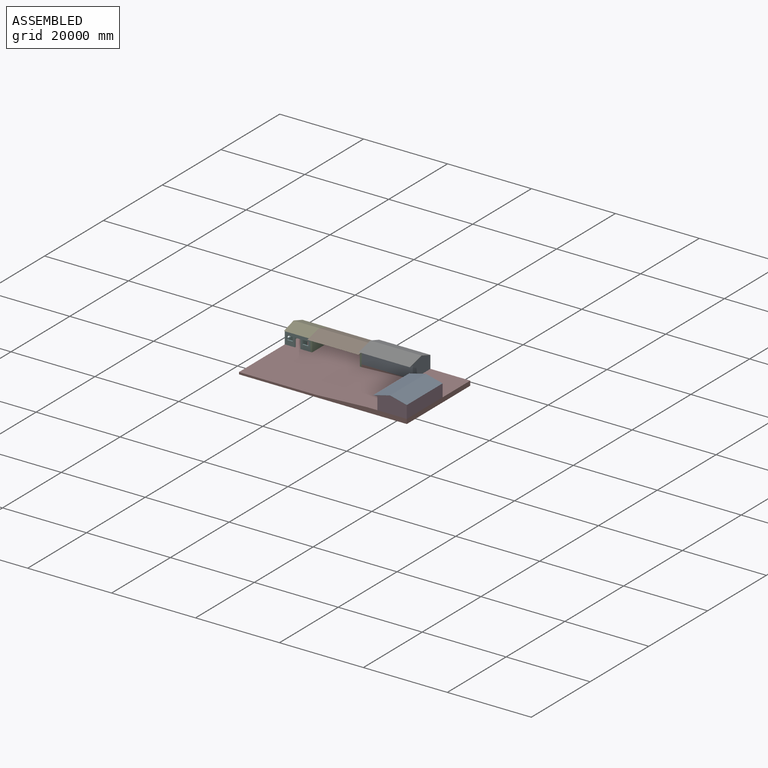
[diagram: assembled view]
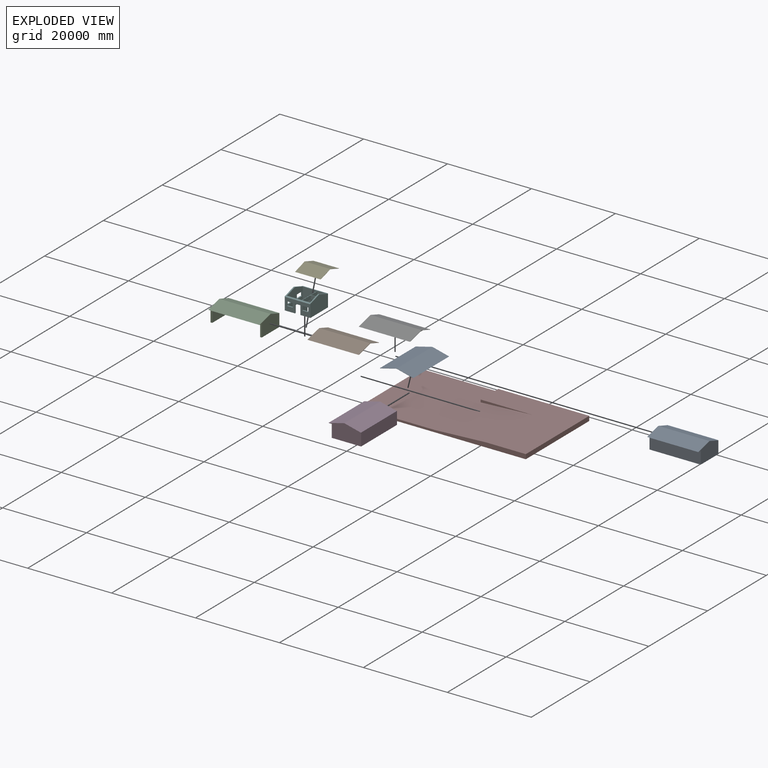
[diagram: exploded view]
GUIDED TOUR — MATED ASSEMBLY (Onshape document 048a8c4fdd6db8cd3f0c380b, AutoMate assembly 048a8c4fdd6db8cd3f0c380b_88d23949e270905b50538d9d_7436dc3538892a3179c9b70c_default)

This assembly has 9 components, labeled P0..P8 below (a component is one placed occurrence of a part; the same part can appear more than once), held together by 24 mates. A mate is a constraint between two components; its type names the relative motion it leaves free:
  PLANAR — leaves sliding in the plane through the listed point (normal = the listed direction) and rotation about that normal free.
Axis/direction vectors are unit vectors and 'through' points are millimeter coordinates, both in the assembly's world frame.

MATES
  1. PLANAR "Planar 19": P4 <-> P5, direction (0.000, -0.316, -0.949) through (6334.55, -4202.96, 3473.65) mm
  2. PLANAR "Planar 12": P3 <-> P7, direction (0.000, -1.000, 0.000) through (39711.41, -24225.28, 2365.67) mm
  3. PLANAR "Planar 9": P2 <-> P0, direction (1.000, 0.000, 0.000) through (21584.55, -5672.19, 1769.76) mm
  4. PLANAR "Planar 24": P0 <-> P6, direction (0.000, 0.000, 1.000) through (27684.55, -2702.59, 3600.00) mm
  5. PLANAR "Planar 4": P5 <-> P7, direction (0.000, 0.000, -1.000) through (6395.92, -5473.54, 0.00) mm
  6. PLANAR "Planar 14": P3 <-> P8, direction (0.000, -1.000, 0.000) through (39711.41, -24225.28, 2365.67) mm
  7. PLANAR "Planar 1": P2 <-> P7, direction (1.000, 0.000, 0.000) through (21584.55, -5672.19, 1769.76) mm
  8. PLANAR "Planar 25": P0 <-> P6, direction (0.000, 0.316, 0.949) through (27684.55, -4202.59, 4074.23) mm
  9. PLANAR "Planar 2": P7 <-> P2, direction (0.000, 0.000, 1.000) through (12434.55, -13425.28, 0.00) mm
  10. PLANAR "Planar 7": P7 <-> P5, direction (0.000, 1.000, 0.000) through (3284.55, -2625.28, -250.00) mm
  11. PLANAR "Planar 16": P3 <-> P8, direction (0.243, 0.000, 0.970) through (41181.48, -18125.28, 4074.23) mm
  12. PLANAR "Planar 20": P2 <-> P1, direction (-1.000, 0.000, 0.000) through (9384.55, -5672.19, 1769.76) mm
  13. PLANAR "Planar 6": P7 <-> P5, direction (-1.000, 0.000, 0.000) through (3284.55, -13425.28, -250.00) mm
  14. PLANAR "Planar 17": P5 <-> P4, direction (-1.000, 0.000, 0.000) through (3284.55, -5640.84, 1777.32) mm
  15. PLANAR "Planar 13": P3 <-> P7, direction (1.000, 0.000, 0.000) through (43284.55, -18125.28, 2100.00) mm
  16. PLANAR "Planar 15": P3 <-> P8, direction (0.000, 0.000, -1.000) through (35887.63, -24225.28, 3600.00) mm
  17. PLANAR "Planar 18": P5 <-> P4, direction (0.000, 0.000, 1.000) through (6334.55, -2703.65, 3000.00) mm
  18. PLANAR "Planar 23": P6 <-> P0, direction (-1.000, 0.000, 0.000) through (21584.55, -6112.51, 4087.23) mm
  19. PLANAR "Planar 10": P0 <-> P2, direction (0.000, 1.000, 0.000) through (27684.55, -2625.28, 2100.00) mm
  20. PLANAR "Planar 11": P7 <-> P3, direction (0.000, 0.000, 1.000) through (35681.75, -11374.42, 600.00) mm
  21. PLANAR "Planar 8": P7 <-> P0, direction (0.000, 0.000, 1.000) through (32434.55, -2625.28, 600.00) mm
  22. PLANAR "Planar 21": P2 <-> P1, direction (0.000, 0.000, 1.000) through (15484.55, -2704.33, 3000.00) mm
  23. PLANAR "Planar 22": P2 <-> P1, direction (0.000, 0.316, 0.949) through (15484.55, -4204.33, 3473.65) mm
  24. PLANAR "Planar 3": P2 <-> P7, direction (0.000, 1.000, 0.000) through (15484.55, -2625.28, 1500.00) mm

ASSEMBLY ORDER
  1. P1 — the base component [order verified]
  2. P2 [order verified]
  3. P7 [order verified]
  4. P5 [order verified]
  5. P4 [order verified]
  6. P0 [order verified]
  7. P6 [order verified]
  8. P3 [order verified]
  9. P8 [order verified]
Order-tag legend:
  [order verified] — this step's position reverses a verified removal order: the component was checked to insert without passing through the ones already placed.

Of the 9 components, 4 carry the full construction recipe — the FeatureScript program that regenerates the part's solid from scratch; the rest are supplied as boundary geometry only.
Each toured component is shown spotlighted twice — in the assembled view, then in the exploded view, where a leader line traces a displaced component back to its assembled socket (saturated green if recipe-attached, orange if geometry-only; every other component desaturated gray) — followed by its recipe or geometry summary and the mates that hold it.
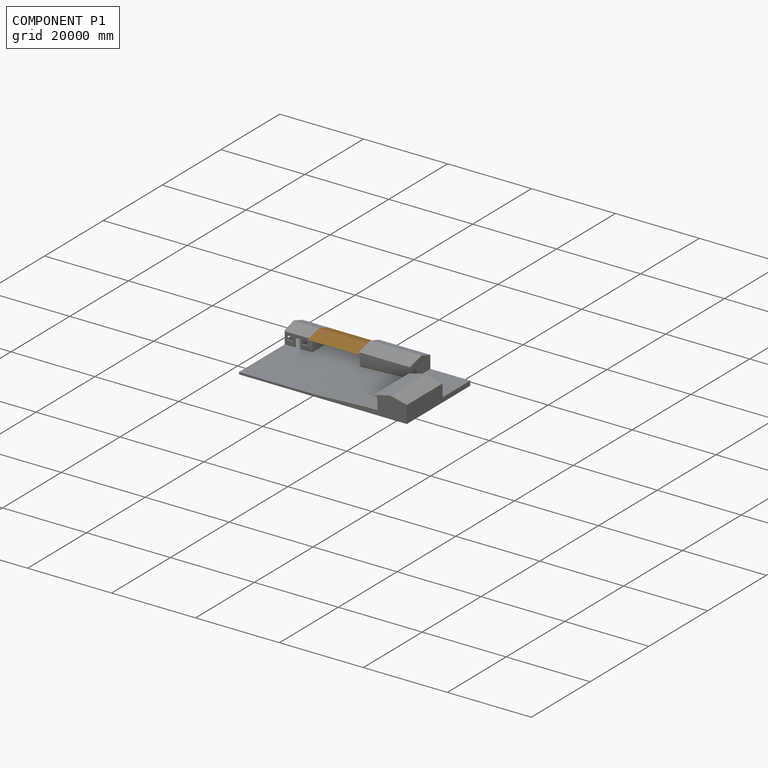
[diagram: component P1 — assembled]
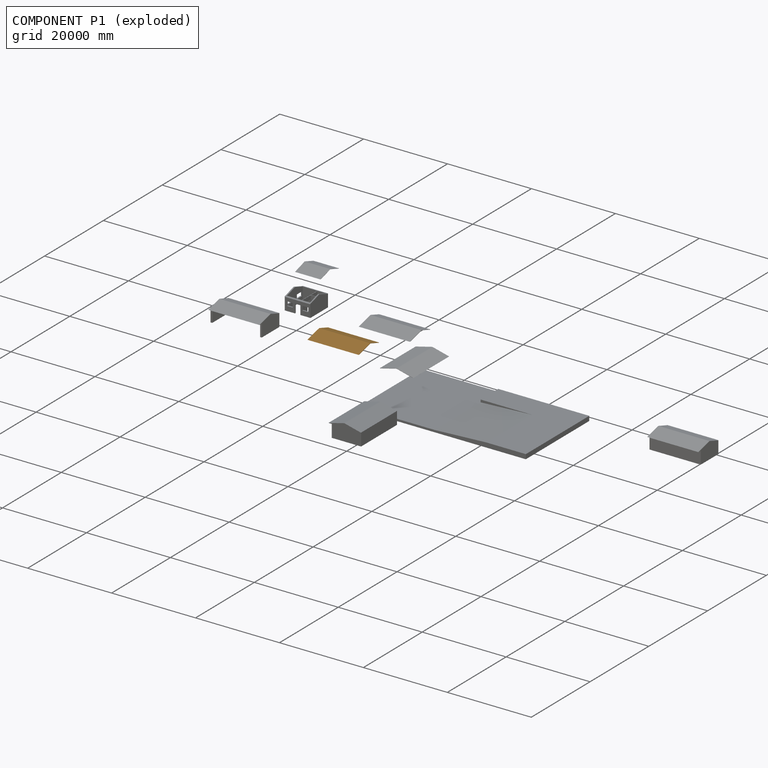
[diagram: component P1 — exploded]
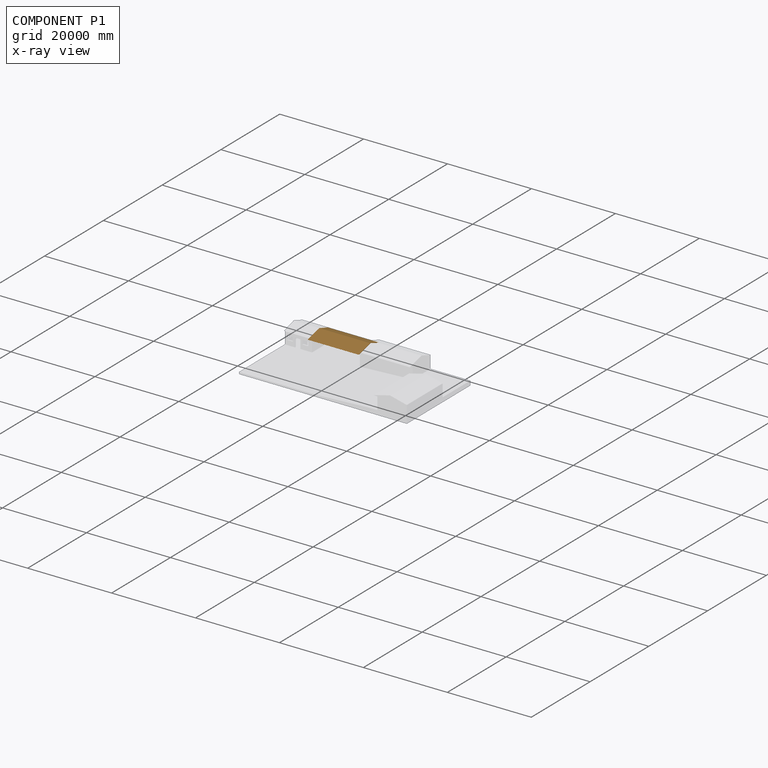
[diagram: component P1 — x-ray view]
COMPONENT P1 — geometry summary (no construction recipe available for this part):
  bounding box: 12200.0 x 7000.0 x 1000.0 mm
  B-rep topology: 1 solid, 8 faces, 36 edges
  volume: 4287993372 mm^3 (5% of its bounding box)
  symmetry: mirror-symmetric across its y mid-plane
Held by: PLANAR mate "Planar 20" to P2; PLANAR mate "Planar 21" to P2; PLANAR mate "Planar 22" to P2.
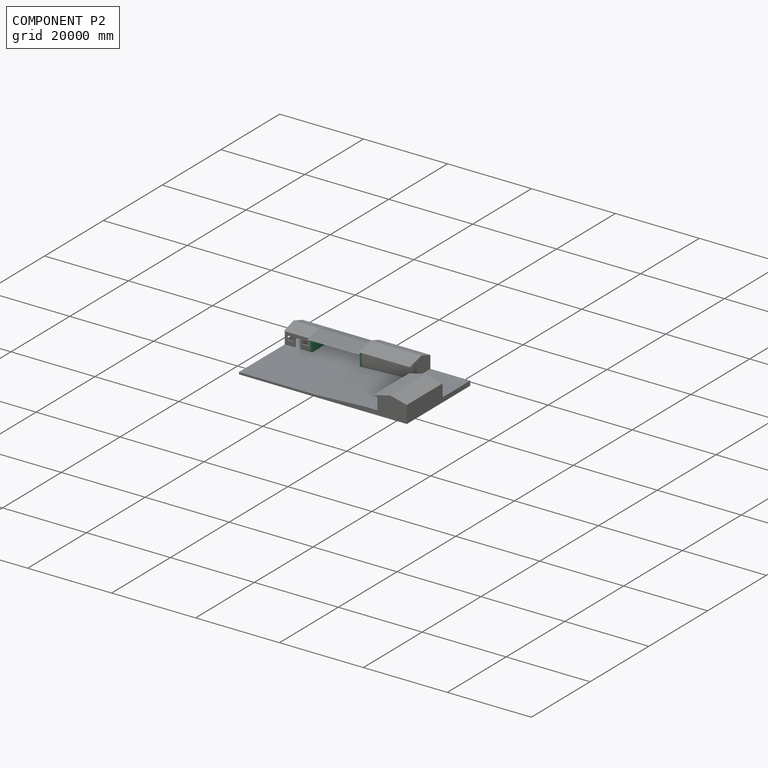
[diagram: component P2 — assembled]
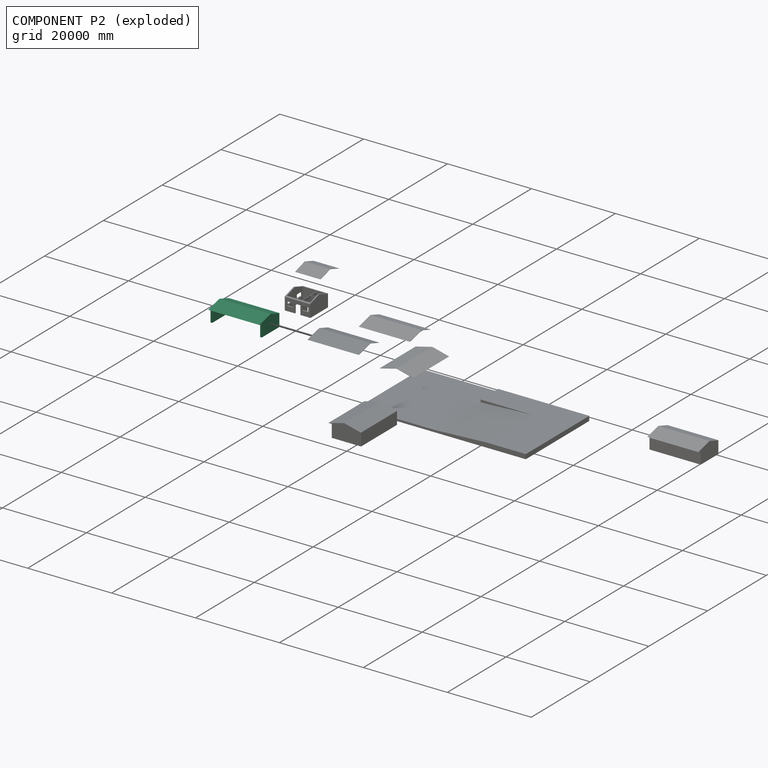
[diagram: component P2 — exploded]
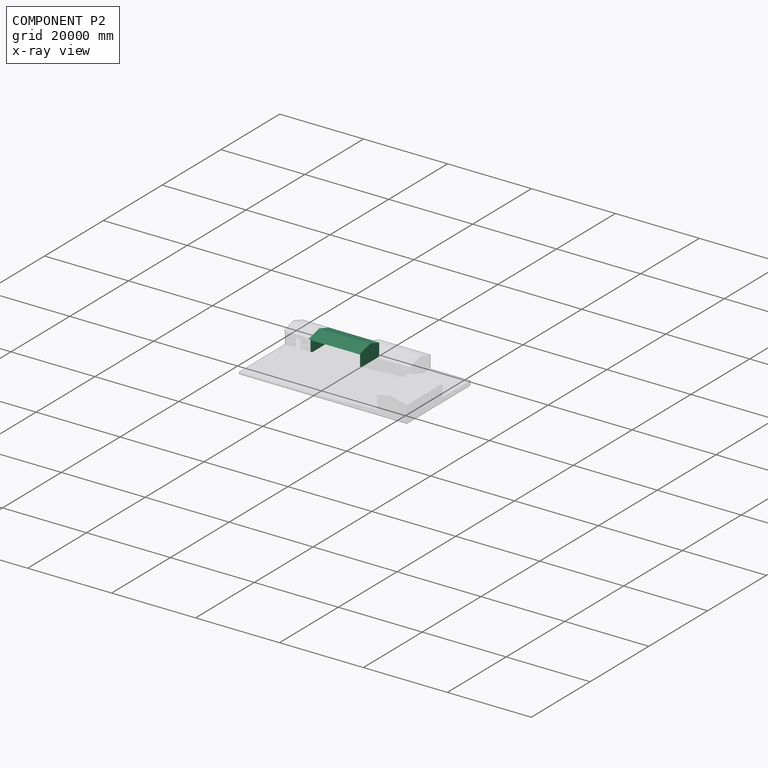
[diagram: component P2 — x-ray view]
COMPONENT P2 — recipe-attached (CADFS 00943162, mesh-verified: the recipe's output STEP matches this component's geometry to below the mesh-comparison resolution (tessellation chordal tolerance ~21.8 mm)).
Held by: PLANAR mate "Planar 9" to P0; PLANAR mate "Planar 1" to P7; PLANAR mate "Planar 2" to P7; PLANAR mate "Planar 20" to P1; PLANAR mate "Planar 10" to P0; PLANAR mate "Planar 21" to P1; PLANAR mate "Planar 22" to P1; PLANAR mate "Planar 3" to P7.
Construction recipe (FeatureScript — the CAD program that rebuilds this solid; sketch coordinates are in the units given by the * unit suffixes, e.g. mm):

FeatureScript 1511;
import(path : "onshape/std/geometry.fs", version : "1511.0");
import(path : "onshape/std/common.fs", version : "1511.0");
const mm = millimeter;
const VERTEX = EntityType.VERTEX;
const EDGE = EntityType.EDGE;
const FACE = EntityType.FACE;
const BODY = EntityType.BODY;
function v(x, y){return vector(x, y);}
function OD(order){return orderDisambiguation(order);}
function OSD(set){return originalSetDisambiguation(set);}
function TD(topology){return topologyDisambiguation(topology);}
function TDD(query){return trueDependencyDisambiguation(query);}
function sQuery(a, b, c) {return sketchEntityQuery(a, b, c);}

annotation { "Feature Type Name" : "Feature", "Feature Type Description" : "" }
export const myFeature = defineFeature(function(context is Context, id is Id, definition is map)
    precondition{}
    {
        {
            var Q0;
            Q0=qCreatedBy(makeId("Top.planeOp"),FACE);
            var sketch = newSketch(context, id + "F0", { "sketchPlane" : qUnion([Q0])});
            skLineSegment(sketch, "E0.bottom", {"start": v(0, 0) * mm, "end": v(12200, 0) * mm});
            skLineSegment(sketch, "E0.top", {"start": v(0, -6000) * mm, "end": v(12200, -6000) * mm});
            skLineSegment(sketch, "E0.left", {"start": v(0, 0) * mm, "end": v(0, -6000) * mm});
            skLineSegment(sketch, "E0.right", {"start": v(12200, 0) * mm, "end": v(12200, -6000) * mm});
            skSolve(sketch);
        }
        {
            var Q0;
            Q0 = qSketchRegion(id + "F0", true);
            extrude(context, id + "F1", {"entities" : qUnion([Q0]), "depth" : 3000 * mm, "offsetDistance" : 25 * mm});
        }
        {
            var Q0;
            Q0=makeQuery(id+"F1.opExtrude","SWEPT_FACE",FACE,{"disambiguationData":[OSD([sQuery(id+"F0.wireOp",EDGE,"E0.left")])]});
            var sketch = newSketch(context, id + "F2", { "sketchPlane" : qUnion([Q0])});
            skLineSegment(sketch, "E1", {"start": v(0, 3000) * mm, "end": v(7000, 3000) * mm});
            skLineSegment(sketch, "E2", {"start": v(7000, 3000) * mm, "end": v(3000, 4000) * mm});
            skLineSegment(sketch, "E3", {"start": v(3000, 4000) * mm, "end": v(0, 3000) * mm});
            skSolve(sketch);
        }
        {
            var Q0;
            Q0 = qSketchRegion(id + "F2", true);
            extrude(context, id + "F3", {"entities" : qUnion([Q0]), "operationType" : NewBodyOperationType.ADD, "oppositeDirection" : true, "depth" : 12200 * mm, "offsetDistance" : 25 * mm});
        }
        {
            var Q0;
            Q0=makeQuery(id+"F1.opExtrude","SWEPT_FACE",FACE,{"disambiguationData":[OSD([sQuery(id+"F0.wireOp",EDGE,"E0.top")])]});
            var sketch = newSketch(context, id + "F4", { "sketchPlane" : qUnion([Q0])});
            skLineSegment(sketch, "E4.bottom", {"start": v(400, 0) * mm, "end": v(11800, 0) * mm});
            skLineSegment(sketch, "E4.top", {"start": v(400, 2600) * mm, "end": v(11800, 2600) * mm});
            skLineSegment(sketch, "E4.left", {"start": v(400, 0) * mm, "end": v(400, 2600) * mm});
            skLineSegment(sketch, "E4.right", {"start": v(11800, 0) * mm, "end": v(11800, 2600) * mm});
            skSolve(sketch);
        }
        {
            var Q0;
            Q0 = qSketchRegion(id + "F4", true);
            extrude(context, id + "F5", {"entities" : qUnion([Q0]), "operationType" : NewBodyOperationType.REMOVE, "oppositeDirection" : true, "depth" : 5600 * mm, "offsetDistance" : 25 * mm});
        }
        {
            var Q0;
            Q0=makeQuery(id+"F3.boolean.opBoolean","MERGE",FACE,{"derivedFrom":[makeQuery(id+"F1.opExtrude","SWEPT_FACE",FACE,{"disambiguationData":[OSD([sQuery(id+"F0.wireOp",EDGE,"E0.left")])]}),makeQuery(id+"F3.opExtrude","CAP_FACE",FACE,{"disambiguationData":[OSD([sQuery(id+"F2.wireOp",EDGE,"E1"),sQuery(id+"F2.wireOp",EDGE,"E2"),sQuery(id+"F2.wireOp",EDGE,"E3")])],"isStart":true})]});
            var sketch = newSketch(context, id + "F6", { "sketchPlane" : qUnion([Q0])});
            skLineSegment(sketch, "E5", {"start": v(0, 3000) * mm, "end": v(3000, 4000) * mm});
            skLineSegment(sketch, "E6", {"start": v(3000, 4000) * mm, "end": v(7000, 3000) * mm});
            skLineSegment(sketch, "E7", {"start": v(7000, 3000) * mm, "end": v(6789.18, 3000) * mm});
            skLineSegment(sketch, "E8", {"start": v(6789.18, 3000) * mm, "end": v(3000, 3947.3) * mm});
            skLineSegment(sketch, "E9", {"start": v(3000, 3947.3) * mm, "end": v(158.11, 3000) * mm});
            skLineSegment(sketch, "E10", {"start": v(158.11, 3000) * mm, "end": v(0, 3000) * mm});
            skSolve(sketch);
        }
        {
            var Q0;
            Q0 = qSketchRegion(id + "F6", true);
            extrude(context, id + "F7", {"entities" : qUnion([Q0]), "operationType" : NewBodyOperationType.REMOVE, "oppositeDirection" : true, "depth" : 18300 * mm, "offsetDistance" : 25 * mm});
        }
    });
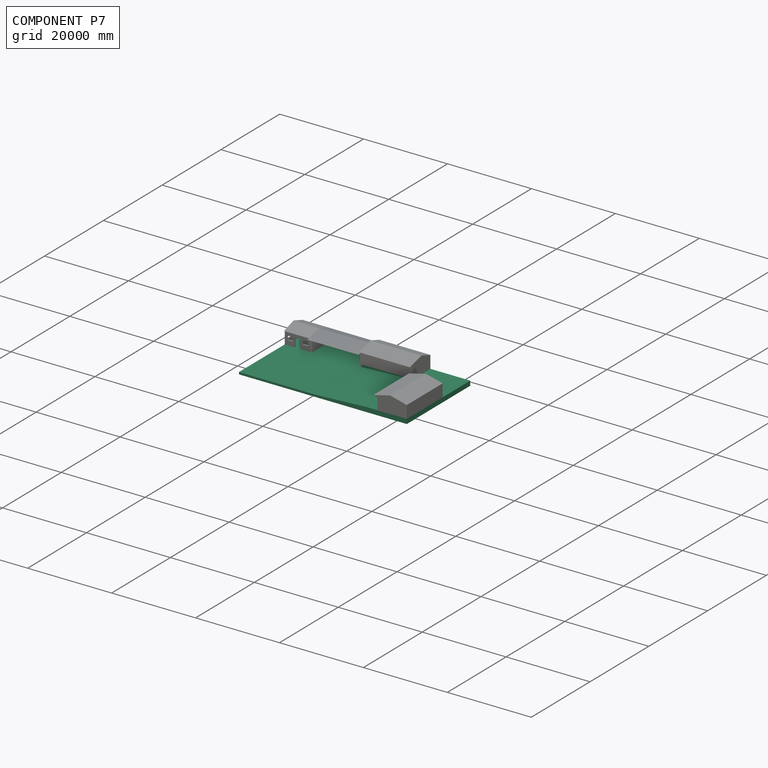
[diagram: component P7 — assembled]
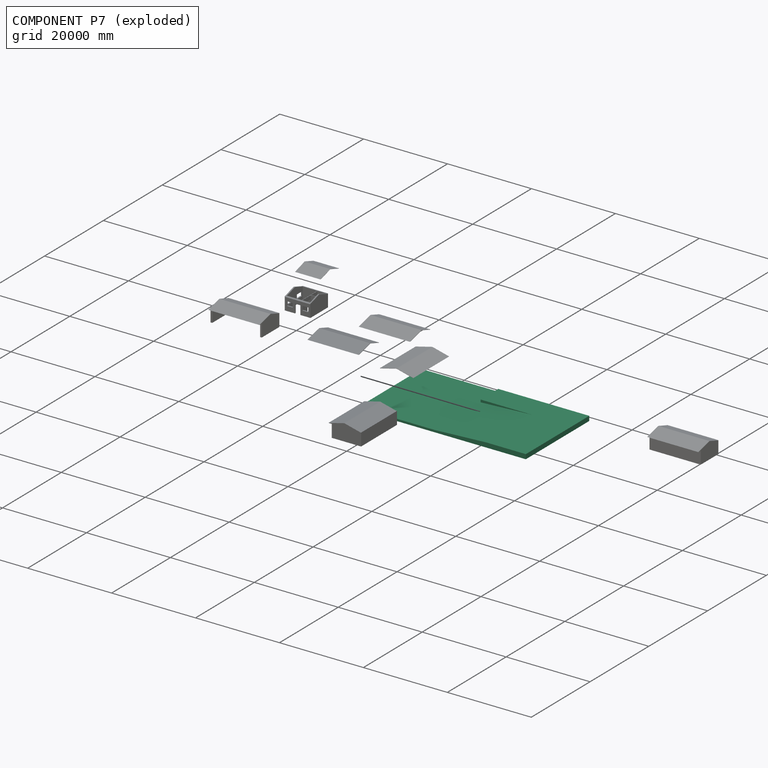
[diagram: component P7 — exploded]
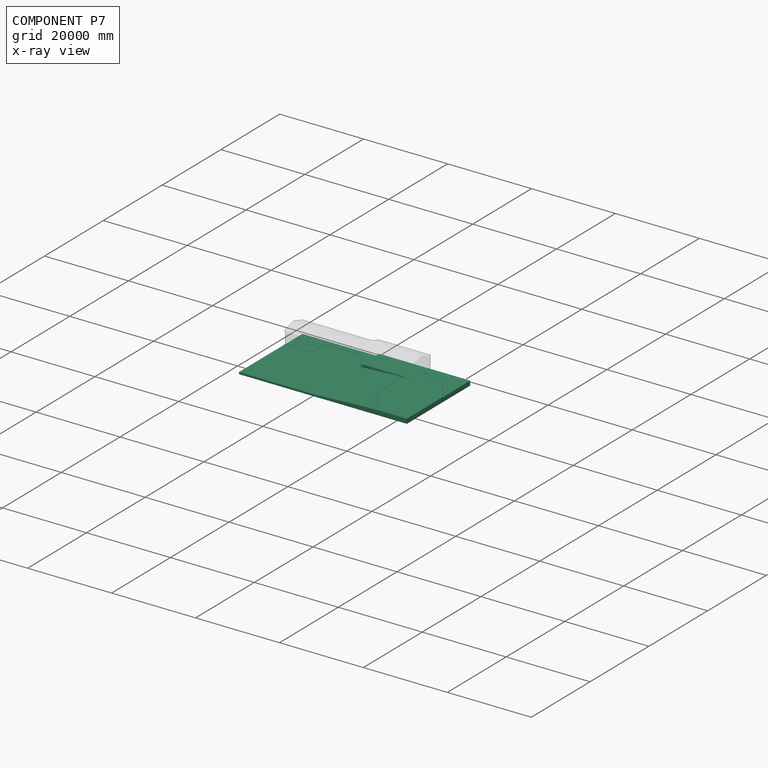
[diagram: component P7 — x-ray view]
COMPONENT P7 — recipe-attached (CADFS 00943165, mesh-verified: the recipe's output STEP matches this component's geometry to below the mesh-comparison resolution (tessellation chordal tolerance ~68.2 mm)).
Held by: PLANAR mate "Planar 12" to P3; PLANAR mate "Planar 4" to P5; PLANAR mate "Planar 1" to P2; PLANAR mate "Planar 2" to P2; PLANAR mate "Planar 7" to P5; PLANAR mate "Planar 6" to P5; PLANAR mate "Planar 13" to P3; PLANAR mate "Planar 11" to P3; PLANAR mate "Planar 8" to P0; PLANAR mate "Planar 3" to P2.
Construction recipe (FeatureScript — the CAD program that rebuilds this solid; sketch coordinates are in the units given by the * unit suffixes, e.g. mm):

FeatureScript 1511;
import(path : "onshape/std/geometry.fs", version : "1511.0");
import(path : "onshape/std/common.fs", version : "1511.0");
const mm = millimeter;
const VERTEX = EntityType.VERTEX;
const EDGE = EntityType.EDGE;
const FACE = EntityType.FACE;
const BODY = EntityType.BODY;
function v(x, y){return vector(x, y);}
function OD(order){return orderDisambiguation(order);}
function OSD(set){return originalSetDisambiguation(set);}
function TD(topology){return topologyDisambiguation(topology);}
function TDD(query){return trueDependencyDisambiguation(query);}
function sQuery(a, b, c) {return sketchEntityQuery(a, b, c);}

annotation { "Feature Type Name" : "Feature", "Feature Type Description" : "" }
export const myFeature = defineFeature(function(context is Context, id is Id, definition is map)
    precondition{}
    {
        {
            var Q0;
            Q0=qCreatedBy(makeId("Top.planeOp"),FACE);
            var sketch = newSketch(context, id + "F0", { "sketchPlane" : qUnion([Q0])});
            skLineSegment(sketch, "E0.bottom", {"start": v(0, 0) * mm, "end": v(40000, 0) * mm});
            skLineSegment(sketch, "E0.top", {"start": v(0, -21600) * mm, "end": v(40000, -21600) * mm});
            skLineSegment(sketch, "E0.left", {"start": v(0, 0) * mm, "end": v(0, -21600) * mm});
            skLineSegment(sketch, "E0.right", {"start": v(40000, 0) * mm, "end": v(40000, -21600) * mm});
            skSolve(sketch);
        }
        {
            var Q0;
            Q0 = qSketchRegion(id + "F0", true);
            extrude(context, id + "F1", {"entities" : qUnion([Q0]), "depth" : 500 * mm, "offsetDistance" : 25 * mm});
        }
        {
            var Q0;
            Q0=makeQuery(id+"F1.opExtrude","CAP_FACE",FACE,{"disambiguationData":[OSD([sQuery(id+"F0.wireOp",EDGE,"E0.bottom"),sQuery(id+"F0.wireOp",EDGE,"E0.top"),sQuery(id+"F0.wireOp",EDGE,"E0.left"),sQuery(id+"F0.wireOp",EDGE,"E0.right")])],"isStart":false});
            var sketch = newSketch(context, id + "F2", { "sketchPlane" : qUnion([Q0])});
            skLineSegment(sketch, "E1.bottom", {"start": v(18300, 0) * mm, "end": v(40000, 0) * mm});
            skLineSegment(sketch, "E1.top", {"start": v(18300, -21600) * mm, "end": v(40000, -21600) * mm});
            skLineSegment(sketch, "E1.left", {"start": v(18300, 0) * mm, "end": v(18300, -21600) * mm});
            skLineSegment(sketch, "E1.right", {"start": v(40000, 0) * mm, "end": v(40000, -21600) * mm});
            skSolve(sketch);
        }
        {
            var Q0;
            Q0 = qSketchRegion(id + "F2", true);
            extrude(context, id + "F3", {"entities" : qUnion([Q0]), "operationType" : NewBodyOperationType.ADD, "depth" : 600 * mm, "offsetDistance" : 25 * mm});
        }
        {
            var Q0;
            Q0=makeQuery(id+"F3.boolean.opBoolean","MERGE",FACE,{"derivedFrom":[makeQuery(id+"F1.opExtrude","SWEPT_FACE",FACE,{"disambiguationData":[OSD([sQuery(id+"F0.wireOp",EDGE,"E0.top")])]}),makeQuery(id+"F3.opExtrude","SWEPT_FACE",FACE,{"disambiguationData":[OSD([sQuery(id+"F2.wireOp",EDGE,"E1.top")])]})]});
            var sketch = newSketch(context, id + "F4", { "sketchPlane" : qUnion([Q0])});
            skLineSegment(sketch, "E2", {"start": v(18300, 1100) * mm, "end": v(30500, 1100) * mm});
            skLineSegment(sketch, "E3", {"start": v(30500, 1100) * mm, "end": v(18300, 500) * mm});
            skLineSegment(sketch, "E4", {"start": v(18300, 500) * mm, "end": v(18300, 1100) * mm});
            skSolve(sketch);
        }
        {
            var Q0;
            Q0 = qSketchRegion(id + "F4", true);
            extrude(context, id + "F5", {"entities" : qUnion([Q0]), "operationType" : NewBodyOperationType.REMOVE, "oppositeDirection" : true, "depth" : 15600 * mm, "offsetDistance" : 25 * mm});
        }
    });
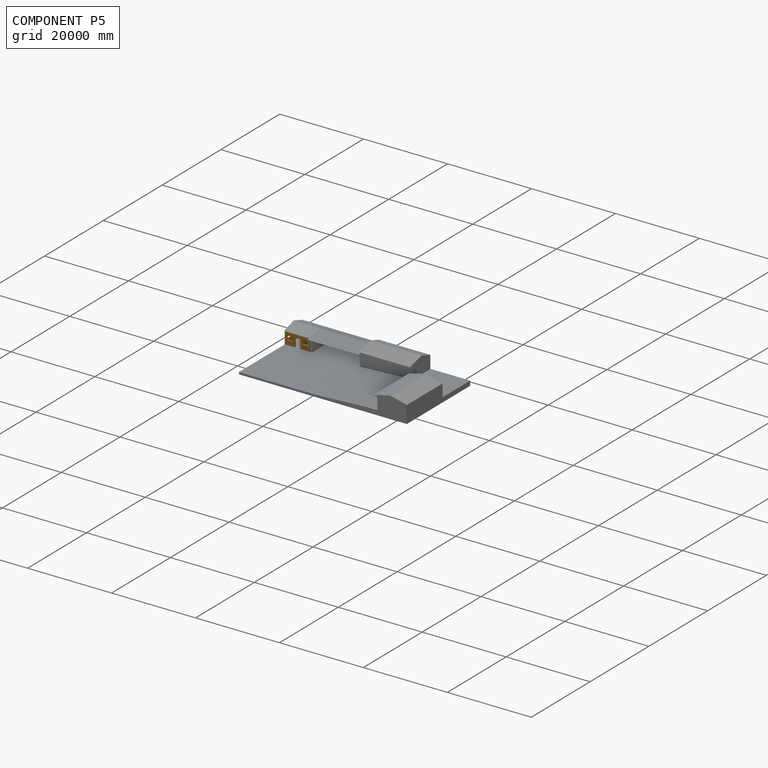
[diagram: component P5 — assembled]
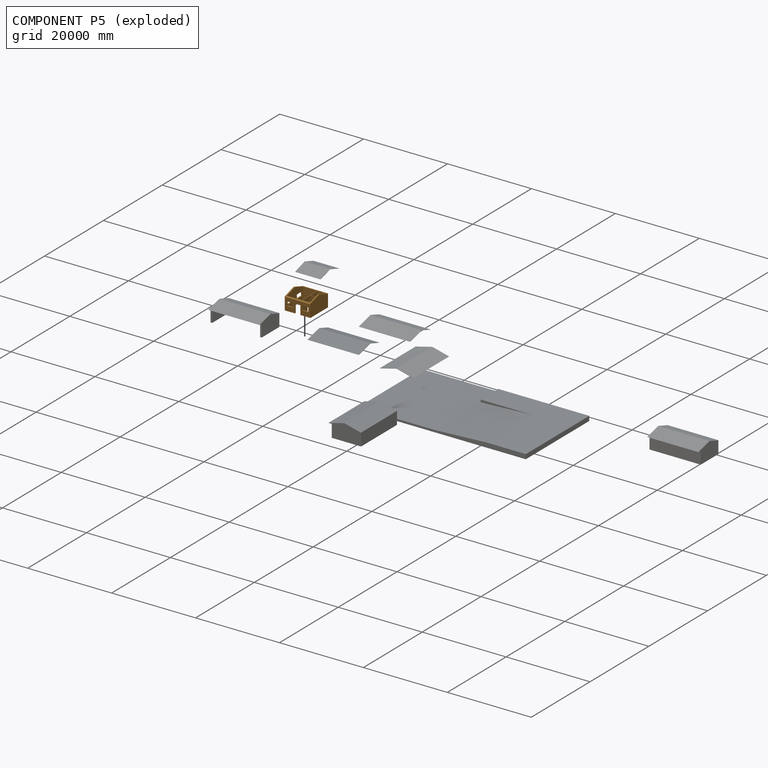
[diagram: component P5 — exploded]
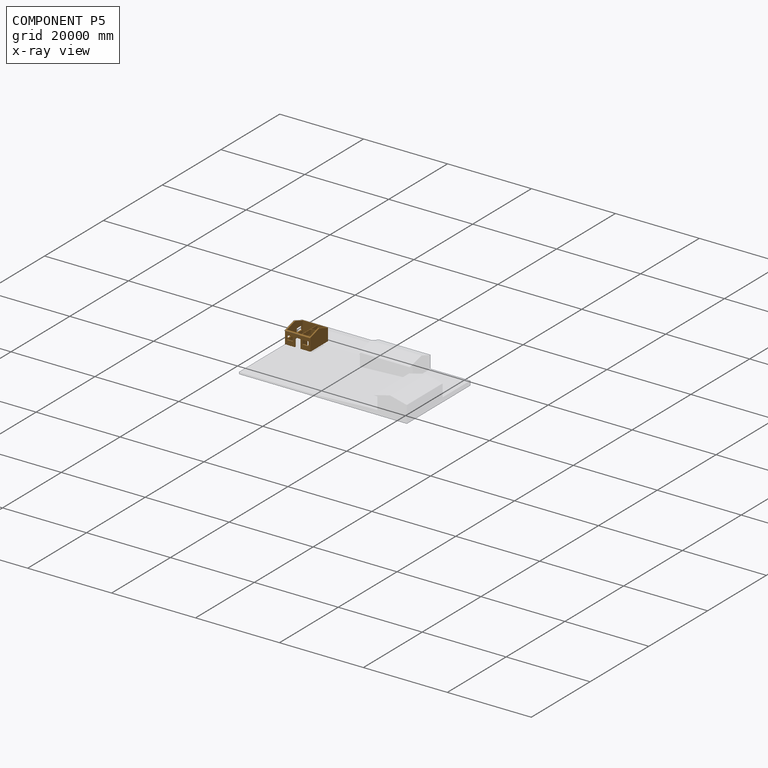
[diagram: component P5 — x-ray view]
COMPONENT P5 — geometry summary (no construction recipe available for this part):
  bounding box: 6127.6 x 6100.0 x 3947.8 mm
  B-rep topology: 1 solid, 47 faces, 306 edges
  volume: 21419847439 mm^3 (15% of its bounding box)
Held by: PLANAR mate "Planar 19" to P4; PLANAR mate "Planar 4" to P7; PLANAR mate "Planar 7" to P7; PLANAR mate "Planar 6" to P7; PLANAR mate "Planar 17" to P4; PLANAR mate "Planar 18" to P4.
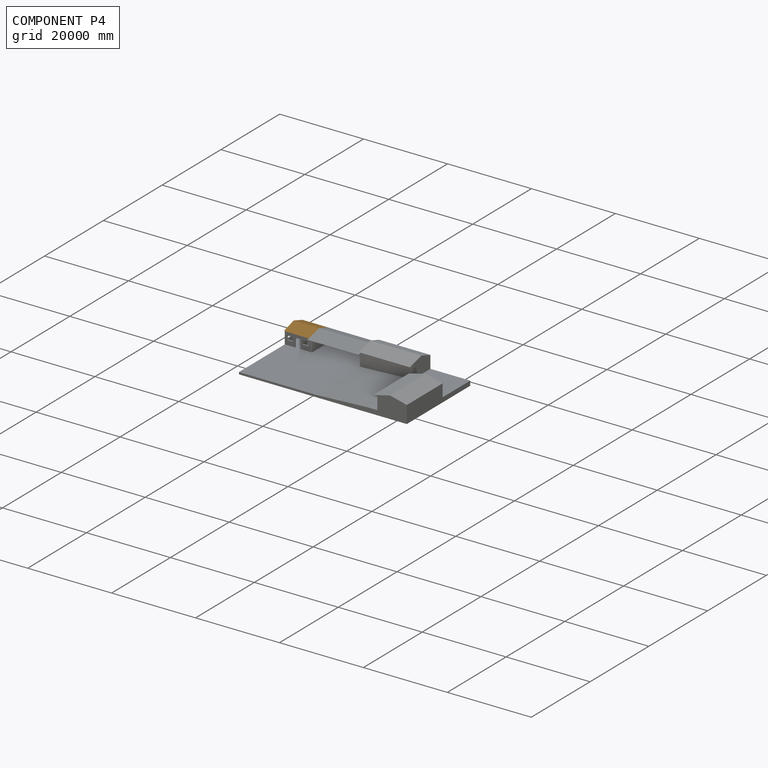
[diagram: component P4 — assembled]
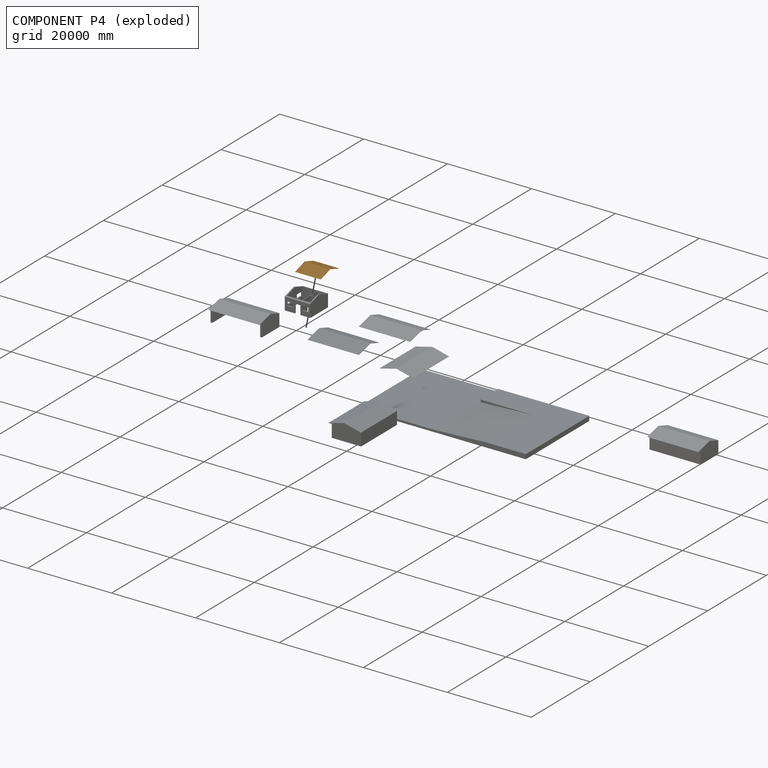
[diagram: component P4 — exploded]
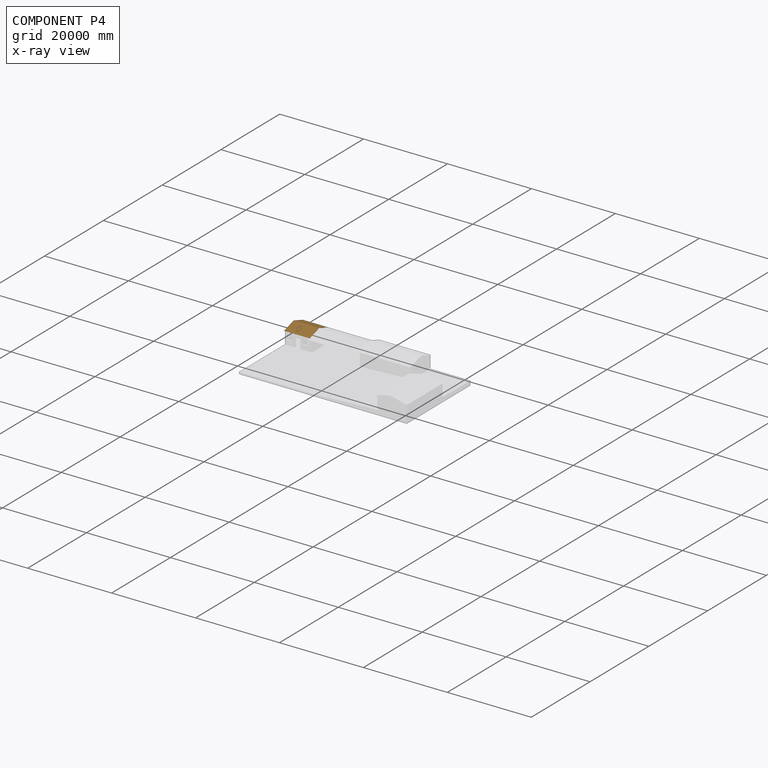
[diagram: component P4 — x-ray view]
COMPONENT P4 — geometry summary (no construction recipe available for this part):
  bounding box: 6300.0 x 6100.0 x 1000.0 mm
  B-rep topology: 1 solid, 8 faces, 36 edges
  volume: 1972063843 mm^3 (5% of its bounding box)
  symmetry: mirror-symmetric across its y mid-plane
Held by: PLANAR mate "Planar 19" to P5; PLANAR mate "Planar 17" to P5; PLANAR mate "Planar 18" to P5.
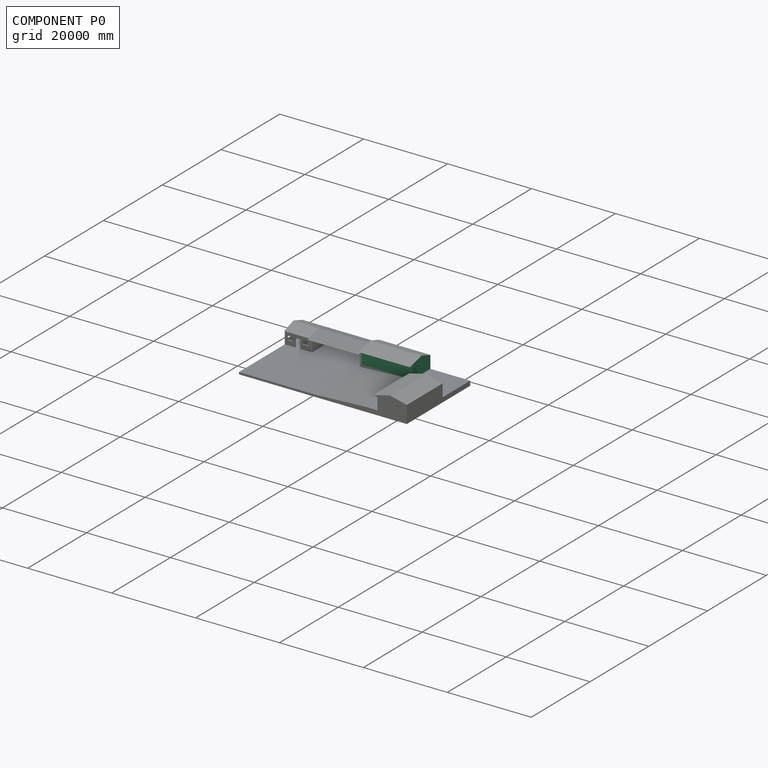
[diagram: component P0 — assembled]
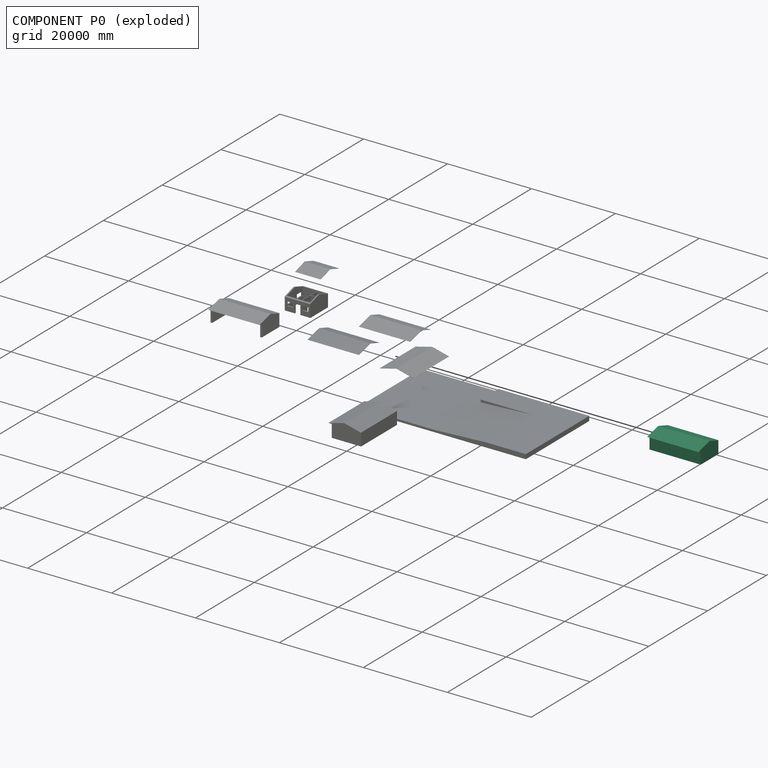
[diagram: component P0 — exploded]
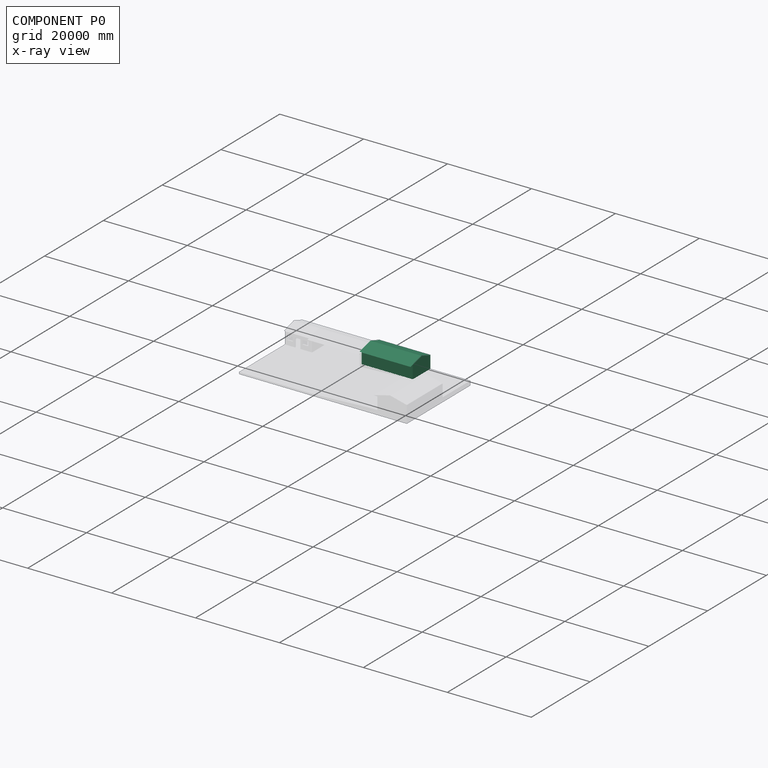
[diagram: component P0 — x-ray view]
COMPONENT P0 — recipe-attached (CADFS 00943164, mesh-verified: the recipe's output STEP matches this component's geometry to below the mesh-comparison resolution (tessellation chordal tolerance ~21.8 mm)).
Held by: PLANAR mate "Planar 9" to P2; PLANAR mate "Planar 24" to P6; PLANAR mate "Planar 25" to P6; PLANAR mate "Planar 23" to P6; PLANAR mate "Planar 10" to P2; PLANAR mate "Planar 8" to P7.
Construction recipe (FeatureScript — the CAD program that rebuilds this solid; sketch coordinates are in the units given by the * unit suffixes, e.g. mm):

FeatureScript 1511;
import(path : "onshape/std/geometry.fs", version : "1511.0");
import(path : "onshape/std/common.fs", version : "1511.0");
const mm = millimeter;
const VERTEX = EntityType.VERTEX;
const EDGE = EntityType.EDGE;
const FACE = EntityType.FACE;
const BODY = EntityType.BODY;
function v(x, y){return vector(x, y);}
function OD(order){return orderDisambiguation(order);}
function OSD(set){return originalSetDisambiguation(set);}
function TD(topology){return topologyDisambiguation(topology);}
function TDD(query){return trueDependencyDisambiguation(query);}
function sQuery(a, b, c) {return sketchEntityQuery(a, b, c);}

annotation { "Feature Type Name" : "Feature", "Feature Type Description" : "" }
export const myFeature = defineFeature(function(context is Context, id is Id, definition is map)
    precondition{}
    {
        {
            var Q0;
            Q0=qCreatedBy(makeId("Top.planeOp"),FACE);
            var sketch = newSketch(context, id + "F0", { "sketchPlane" : qUnion([Q0])});
            skLineSegment(sketch, "E0.bottom", {"start": v(0, 0) * mm, "end": v(12200, 0) * mm});
            skLineSegment(sketch, "E0.top", {"start": v(0, -6000) * mm, "end": v(12200, -6000) * mm});
            skLineSegment(sketch, "E0.left", {"start": v(0, 0) * mm, "end": v(0, -6000) * mm});
            skLineSegment(sketch, "E0.right", {"start": v(12200, 0) * mm, "end": v(12200, -6000) * mm});
            skSolve(sketch);
        }
        {
            var Q0;
            Q0 = qSketchRegion(id + "F0", true);
            extrude(context, id + "F1", {"entities" : qUnion([Q0]), "depth" : 3000 * mm, "offsetDistance" : 25 * mm});
        }
        {
            var Q0;
            Q0=makeQuery(id+"F1.opExtrude","SWEPT_FACE",FACE,{"disambiguationData":[OSD([sQuery(id+"F0.wireOp",EDGE,"E0.left")])]});
            var sketch = newSketch(context, id + "F2", { "sketchPlane" : qUnion([Q0])});
            skLineSegment(sketch, "E1", {"start": v(0, 3000) * mm, "end": v(7000, 3000) * mm});
            skLineSegment(sketch, "E2", {"start": v(7000, 3000) * mm, "end": v(3000, 4000) * mm});
            skLineSegment(sketch, "E3", {"start": v(3000, 4000) * mm, "end": v(0, 3000) * mm});
            skSolve(sketch);
        }
        {
            var Q0;
            Q0 = qSketchRegion(id + "F2", true);
            extrude(context, id + "F3", {"entities" : qUnion([Q0]), "operationType" : NewBodyOperationType.ADD, "oppositeDirection" : true, "depth" : 12200 * mm, "offsetDistance" : 25 * mm});
        }
        {
            var Q0;
            Q0=makeQuery(id+"F3.boolean.opBoolean","MERGE",FACE,{"derivedFrom":[makeQuery(id+"F1.opExtrude","SWEPT_FACE",FACE,{"disambiguationData":[OSD([sQuery(id+"F0.wireOp",EDGE,"E0.left")])]}),makeQuery(id+"F3.opExtrude","CAP_FACE",FACE,{"disambiguationData":[OSD([sQuery(id+"F2.wireOp",EDGE,"E1"),sQuery(id+"F2.wireOp",EDGE,"E2"),sQuery(id+"F2.wireOp",EDGE,"E3")])],"isStart":true})]});
            var sketch = newSketch(context, id + "F4", { "sketchPlane" : qUnion([Q0])});
            skLineSegment(sketch, "E4", {"start": v(0, 3000) * mm, "end": v(3000, 4000) * mm});
            skLineSegment(sketch, "E5", {"start": v(3000, 4000) * mm, "end": v(7000, 3000) * mm});
            skLineSegment(sketch, "E6", {"start": v(7000, 3000) * mm, "end": v(6793.84, 3000) * mm});
            skLineSegment(sketch, "E7", {"start": v(6793.84, 3000) * mm, "end": v(3000, 3948.46) * mm});
            skLineSegment(sketch, "E8", {"start": v(3000, 3948.46) * mm, "end": v(154.62, 3000) * mm});
            skLineSegment(sketch, "E9", {"start": v(154.62, 3000) * mm, "end": v(0, 3000) * mm});
            skSolve(sketch);
        }
        {
            var Q0;
            Q0 = qSketchRegion(id + "F4", true);
            extrude(context, id + "F5", {"entities" : qUnion([Q0]), "operationType" : NewBodyOperationType.REMOVE, "oppositeDirection" : true, "depth" : 12200 * mm, "offsetDistance" : 25 * mm});
        }
    });
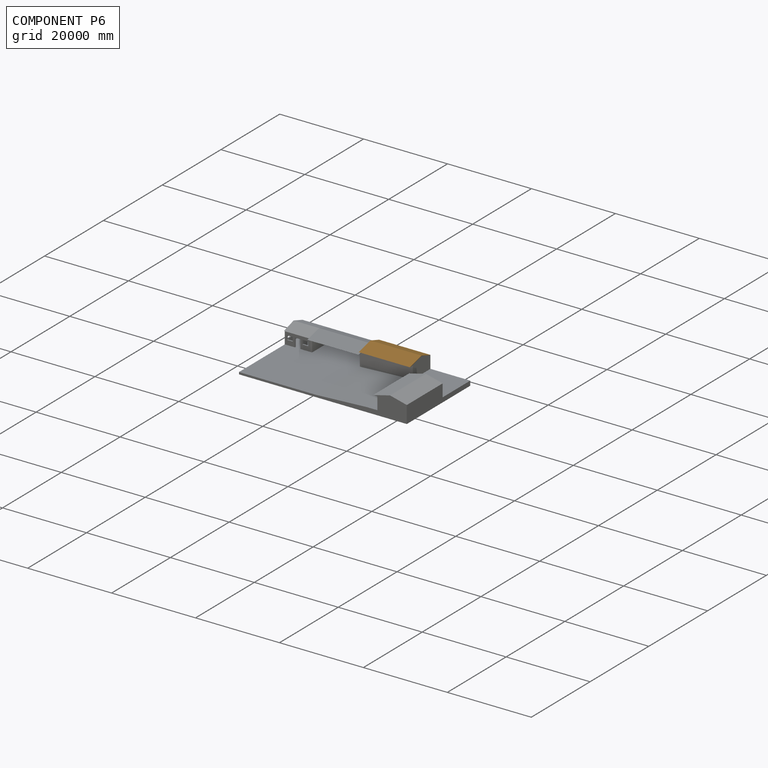
[diagram: component P6 — assembled]
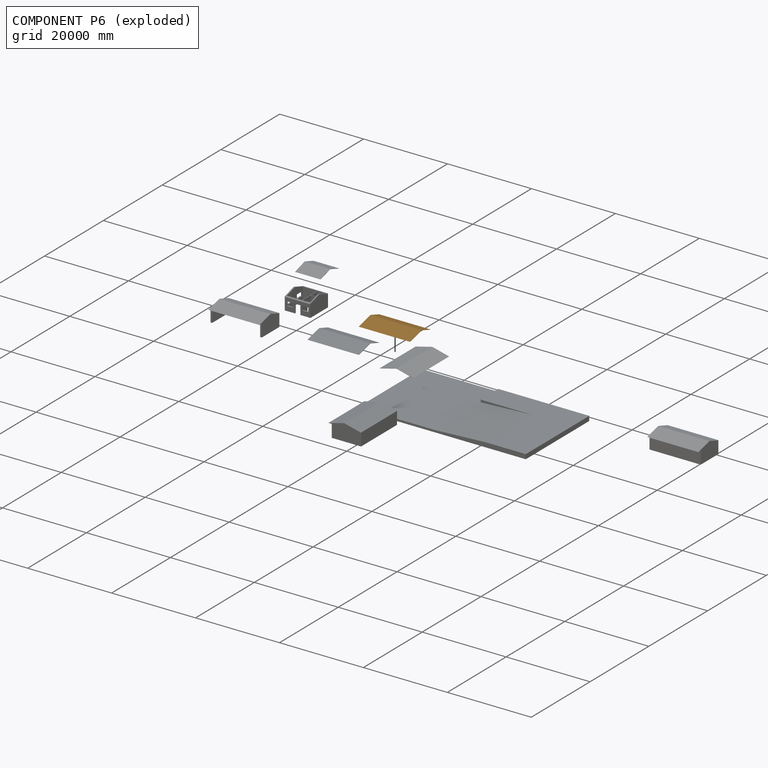
[diagram: component P6 — exploded]
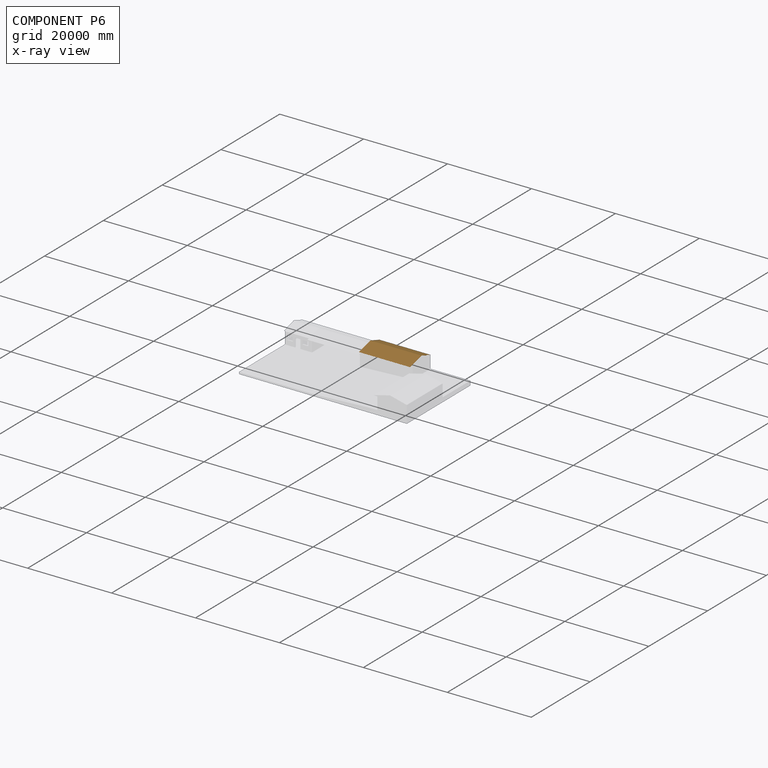
[diagram: component P6 — x-ray view]
COMPONENT P6 — geometry summary (no construction recipe available for this part):
  bounding box: 12200.0 x 7000.0 x 1000.0 mm
  B-rep topology: 1 solid, 8 faces, 36 edges
  volume: 4287993372 mm^3 (5% of its bounding box)
  symmetry: mirror-symmetric across its y mid-plane
Held by: PLANAR mate "Planar 24" to P0; PLANAR mate "Planar 25" to P0; PLANAR mate "Planar 23" to P0.
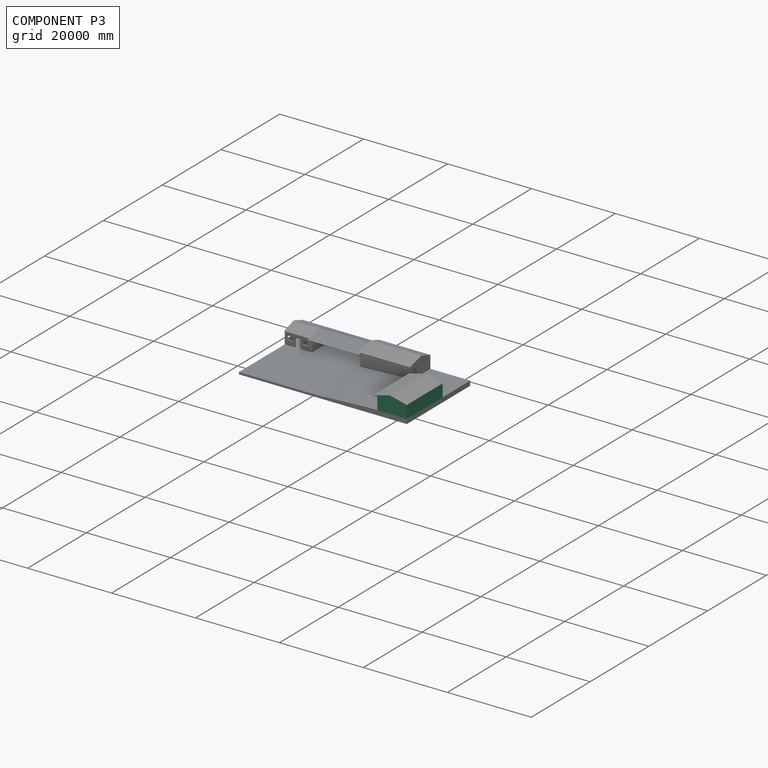
[diagram: component P3 — assembled]
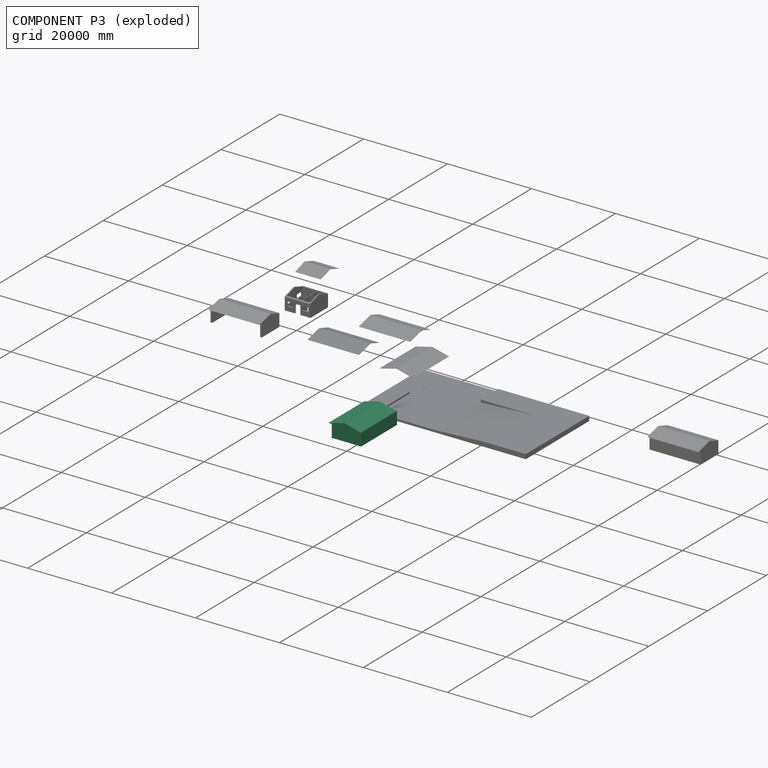
[diagram: component P3 — exploded]
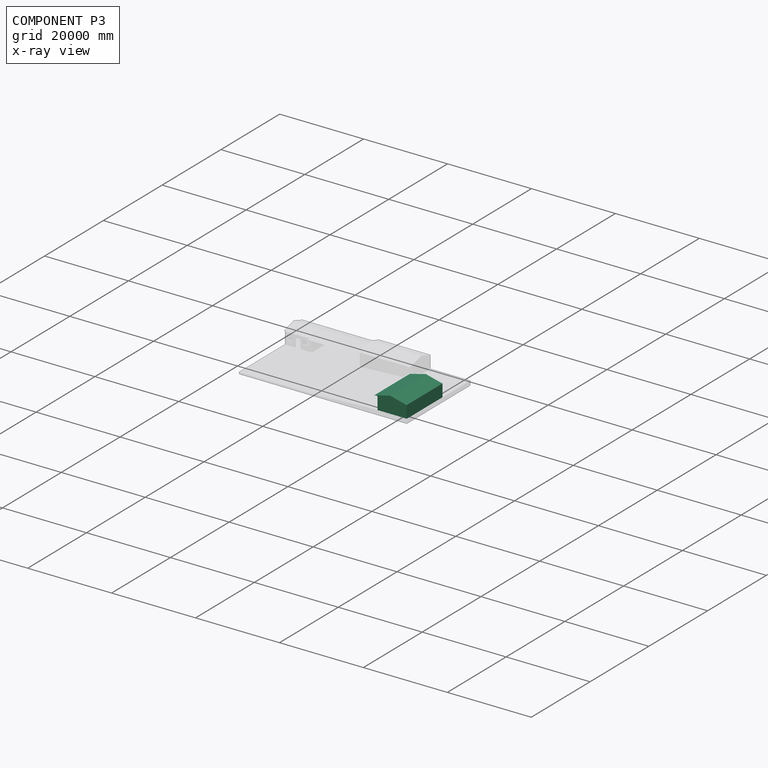
[diagram: component P3 — x-ray view]
COMPONENT P3 — recipe-attached (CADFS 00943166, mesh-verified: the recipe's output STEP matches this component's geometry to below the mesh-comparison resolution (tessellation chordal tolerance ~22.5 mm)).
Held by: PLANAR mate "Planar 12" to P7; PLANAR mate "Planar 14" to P8; PLANAR mate "Planar 16" to P8; PLANAR mate "Planar 13" to P7; PLANAR mate "Planar 15" to P8; PLANAR mate "Planar 11" to P7.
Construction recipe (FeatureScript — the CAD program that rebuilds this solid; sketch coordinates are in the units given by the * unit suffixes, e.g. mm):

FeatureScript 1511;
import(path : "onshape/std/geometry.fs", version : "1511.0");
import(path : "onshape/std/common.fs", version : "1511.0");
const mm = millimeter;
const VERTEX = EntityType.VERTEX;
const EDGE = EntityType.EDGE;
const FACE = EntityType.FACE;
const BODY = EntityType.BODY;
function v(x, y){return vector(x, y);}
function OD(order){return orderDisambiguation(order);}
function OSD(set){return originalSetDisambiguation(set);}
function TD(topology){return topologyDisambiguation(topology);}
function TDD(query){return trueDependencyDisambiguation(query);}
function sQuery(a, b, c) {return sketchEntityQuery(a, b, c);}

annotation { "Feature Type Name" : "Feature", "Feature Type Description" : "" }
export const myFeature = defineFeature(function(context is Context, id is Id, definition is map)
    precondition{}
    {
        {
            var Q0;
            Q0=qCreatedBy(makeId("Top.planeOp"),FACE);
            var sketch = newSketch(context, id + "F0", { "sketchPlane" : qUnion([Q0])});
            skLineSegment(sketch, "E0.bottom", {"start": v(0, 0) * mm, "end": v(7000, 0) * mm});
            skLineSegment(sketch, "E0.top", {"start": v(0, -12200) * mm, "end": v(7000, -12200) * mm});
            skLineSegment(sketch, "E0.left", {"start": v(0, 0) * mm, "end": v(0, -12200) * mm});
            skLineSegment(sketch, "E0.right", {"start": v(7000, 0) * mm, "end": v(7000, -12200) * mm});
            skSolve(sketch);
        }
        {
            var Q0;
            Q0 = qSketchRegion(id + "F0", true);
            extrude(context, id + "F1", {"entities" : qUnion([Q0]), "depth" : 3000 * mm, "offsetDistance" : 25 * mm});
        }
        {
            var Q0;
            Q0=makeQuery(id+"F1.opExtrude","SWEPT_FACE",FACE,{"disambiguationData":[OSD([sQuery(id+"F0.wireOp",EDGE,"E0.top")])]});
            var sketch = newSketch(context, id + "F2", { "sketchPlane" : qUnion([Q0])});
            skLineSegment(sketch, "E1", {"start": v(7000, 3000) * mm, "end": v(-1000, 3000) * mm});
            skLineSegment(sketch, "E2", {"start": v(-1000, 3000) * mm, "end": v(3000, 4000) * mm});
            skLineSegment(sketch, "E3", {"start": v(3000, 4000) * mm, "end": v(7000, 3000) * mm});
            skSolve(sketch);
        }
        {
            var Q0;
            Q0 = qSketchRegion(id + "F2", true);
            extrude(context, id + "F3", {"entities" : qUnion([Q0]), "operationType" : NewBodyOperationType.ADD, "oppositeDirection" : true, "depth" : 12200 * mm, "offsetDistance" : 25 * mm});
        }
        {
            var Q0;
            Q0=makeQuery(id+"F3.boolean.opBoolean","MERGE",FACE,{"derivedFrom":[makeQuery(id+"F1.opExtrude","SWEPT_FACE",FACE,{"disambiguationData":[OSD([sQuery(id+"F0.wireOp",EDGE,"E0.top")])]}),makeQuery(id+"F3.opExtrude","CAP_FACE",FACE,{"disambiguationData":[OSD([sQuery(id+"F2.wireOp",EDGE,"E1"),sQuery(id+"F2.wireOp",EDGE,"E2"),sQuery(id+"F2.wireOp",EDGE,"E3")])],"isStart":true})]});
            var sketch = newSketch(context, id + "F4", { "sketchPlane" : qUnion([Q0])});
            skLineSegment(sketch, "E4", {"start": v(-1000, 3000) * mm, "end": v(3000, 4000) * mm});
            skLineSegment(sketch, "E5", {"start": v(3000, 4000) * mm, "end": v(7000, 3000) * mm});
            skLineSegment(sketch, "E6", {"start": v(7000, 3000) * mm, "end": v(6793.84, 3000) * mm});
            skLineSegment(sketch, "E7", {"start": v(6793.84, 3000) * mm, "end": v(3000, 3948.46) * mm});
            skLineSegment(sketch, "E8", {"start": v(3000, 3948.46) * mm, "end": v(-793.84, 3000) * mm});
            skLineSegment(sketch, "E9", {"start": v(-793.84, 3000) * mm, "end": v(-1000, 3000) * mm});
            skSolve(sketch);
        }
        {
            var Q0;
            Q0 = qSketchRegion(id + "F4", true);
            extrude(context, id + "F5", {"entities" : qUnion([Q0]), "operationType" : NewBodyOperationType.REMOVE, "oppositeDirection" : true, "depth" : 18300 * mm, "offsetDistance" : 25 * mm});
        }
    });
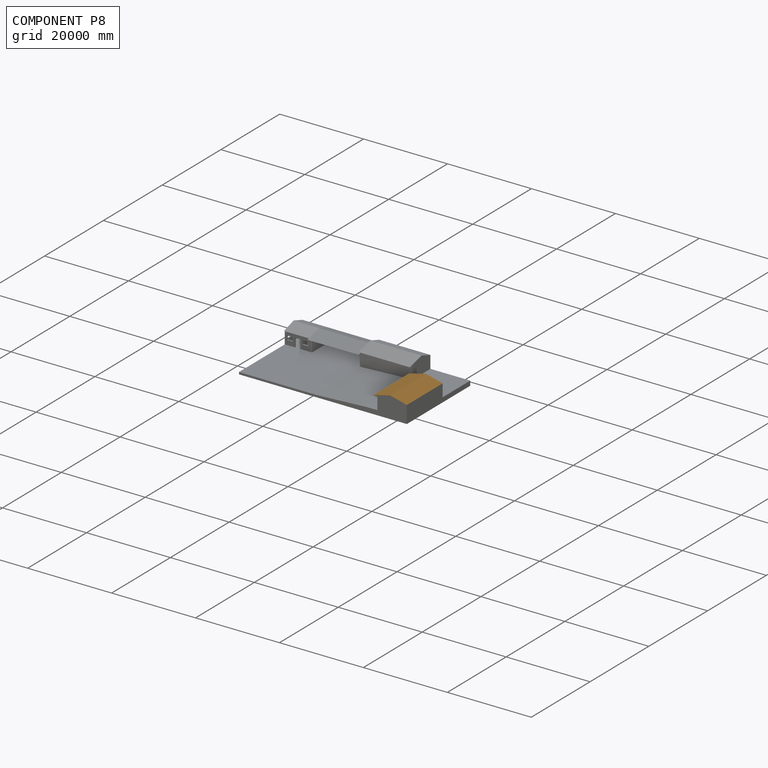
[diagram: component P8 — assembled]
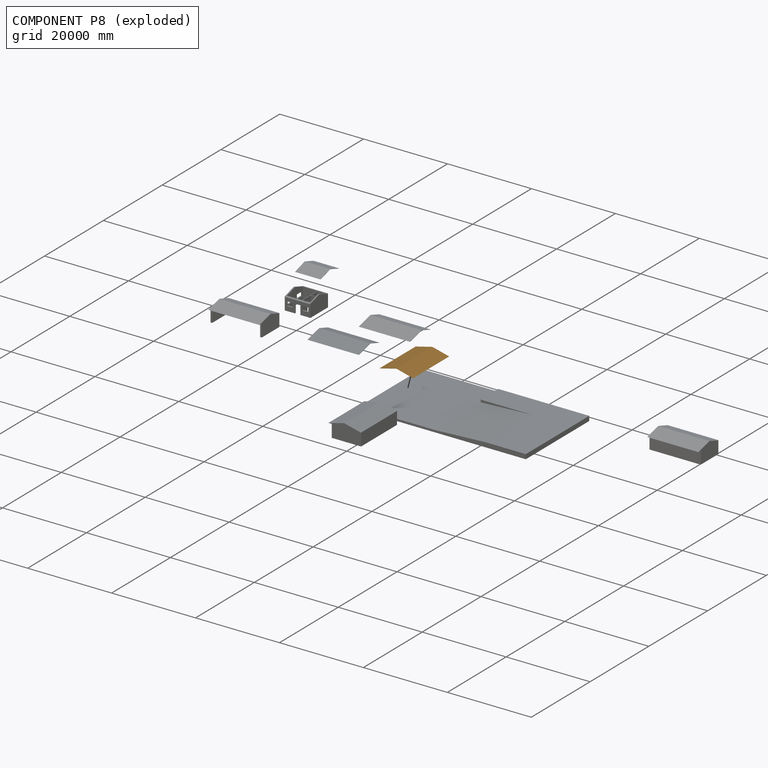
[diagram: component P8 — exploded]
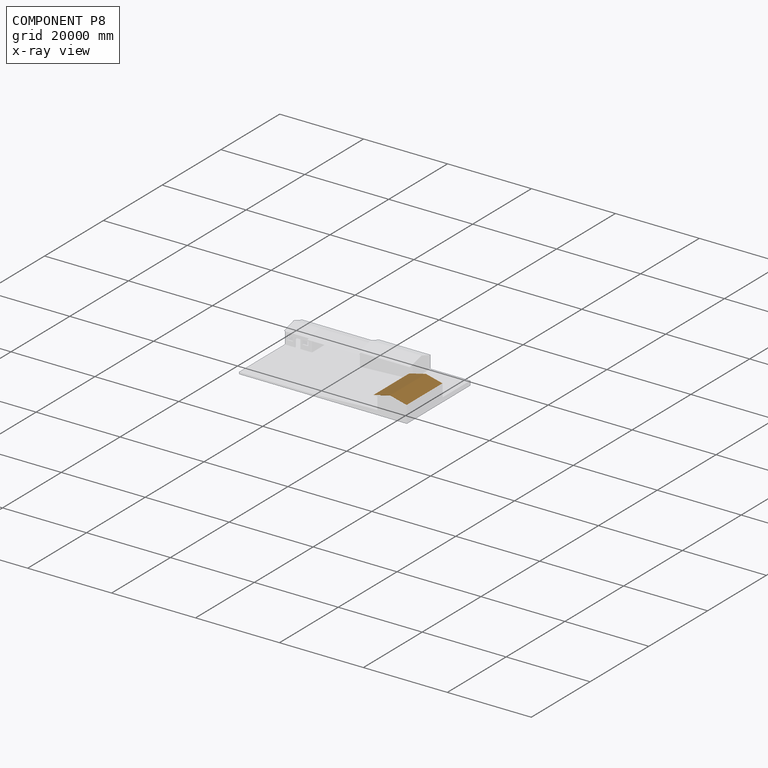
[diagram: component P8 — x-ray view]
COMPONENT P8 — geometry summary (no construction recipe available for this part):
  bounding box: 12200.0 x 8000.0 x 1000.0 mm
  B-rep topology: 1 solid, 8 faces, 36 edges
  volume: 4900563856 mm^3 (5% of its bounding box)
  symmetry: 2-fold rotationally symmetric about the z axis; mirror-symmetric across its x mid-plane, y mid-plane
Held by: PLANAR mate "Planar 14" to P3; PLANAR mate "Planar 16" to P3; PLANAR mate "Planar 15" to P3.
PROVENANCE & LICENSES
Assembly (occurrences, transforms, mates, per-part STEP geometry): AutoMate dataset, Zenodo record 7776208, CC0.
Construction recipes: CADFS (HuggingFace VladPyatov/CADFS, CC-BY-4.0, layered over the ABC dataset), FeatureScript reconstruction programs keyed by ABC model id.
Join: ABC meta listings map ABC model id -> Onshape documentId; within a shared document, parts are matched by geometric signature (bounding-box dims + volume at 0.1% relative tolerance, exact B-rep face/solid counts).
Verification: 4 of this assembly's 9 components carry a recipe attachment, and every attachment is mesh-verified: the CADFS STEP and the AutoMate member STEP were compared as meshes in their shared local frame (symmetric sampled-point-to-mesh distance); worst across the 4 attachments: below the mesh-comparison resolution (tessellation chordal tolerance ~68.2 mm) on a 45473 mm part.
Renders: orthographic iso camera (az 35 / el 25); the floor grid conveys scale (grid pitch printed in each image; no ruler). In the exploded view each component is displaced by its stored offset vector: the offsets alone carry the explosion direction (mate normal/axis signs are not orientation cues and do not encode it), and separation distances are assigned per mate-chain, not proportionally to assembly-order depth.
